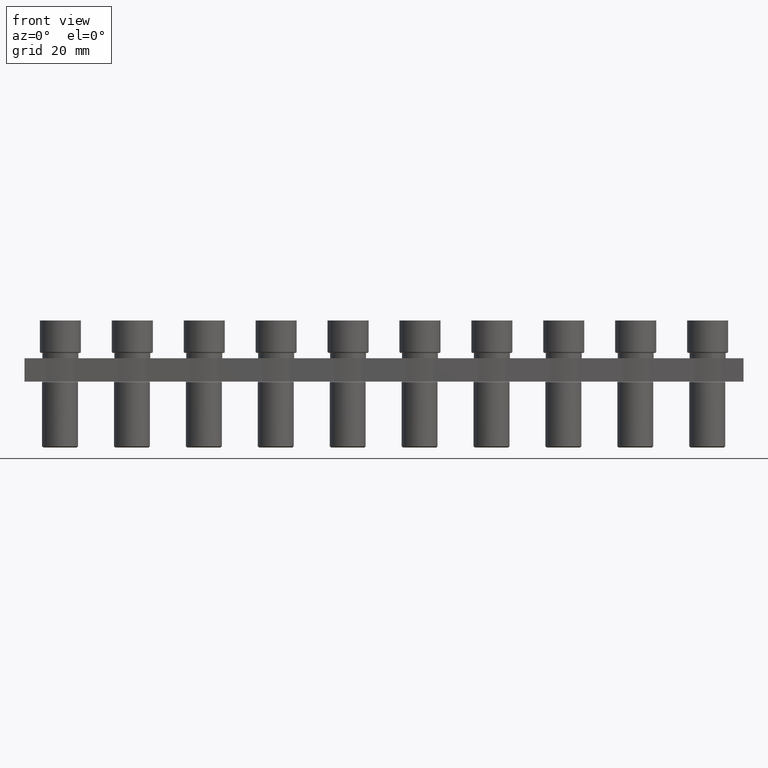
[diagram: clean part render]
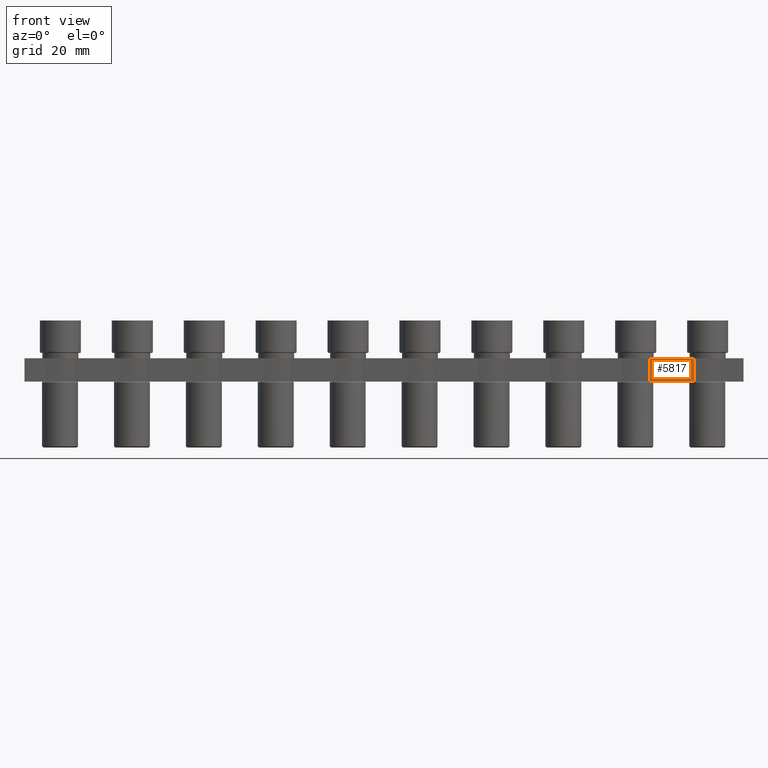
[diagram: same view with one face highlighted and labeled with its STEP entity id]
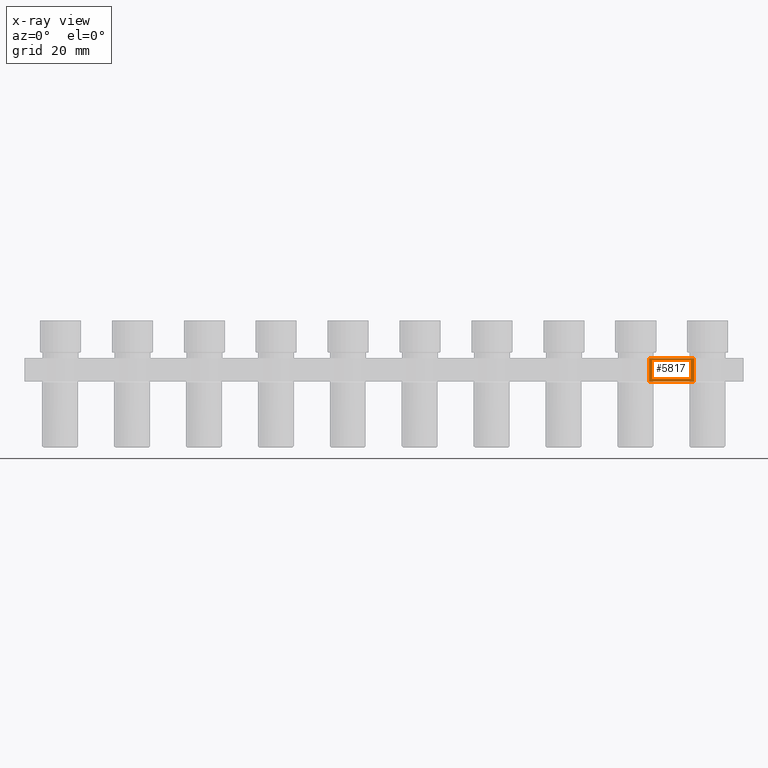
[diagram: x-ray of the same camera — body ghosted, the highlighted face saturated]
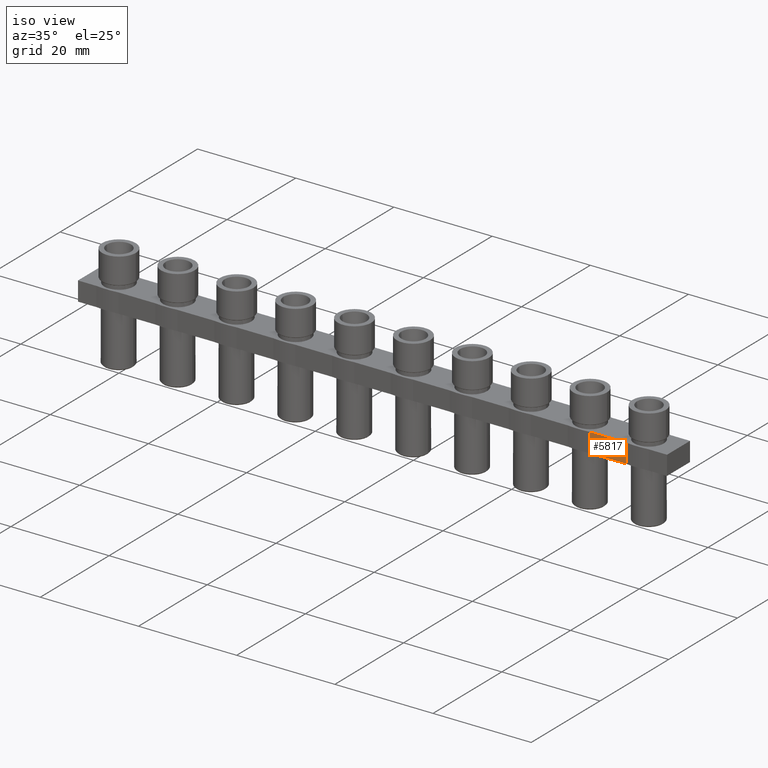
[diagram: same view with one face highlighted and labeled with its STEP entity id]
A machine part, front view. The second image highlights one B-rep face of the part: STEP entity #5817.
The next image is the same camera in x-ray: the body ghosted, the highlighted face saturated — about 0% of this face is hidden behind the body in this view.
A second angle (iso view) of the same face is appended — the face is thin or edge-on in the first view.
In plain terms, the highlighted planar face has unit normal (-0, 1, 0).
Its self-contained STEP definition (entity closure, byte-faithful):
#1624 = CARTESIAN_POINT ( 'NONE',  ( 98.25000000000154900, -3.349999999999918400, -0.9000000000000014700 ) ) ;
#1667 = CARTESIAN_POINT ( 'NONE',  ( 105.7499999999983800, -3.349999999999904600, -4.800000000000001600 ) ) ;
#1681 = CARTESIAN_POINT ( 'NONE',  ( 105.7499999999983800, -3.349999999999904200, -0.9000000000000014700 ) ) ;
#1710 = CARTESIAN_POINT ( 'NONE',  ( 98.25000000000156300, -3.349999999999917000, -4.800000000000001600 ) ) ;
#3074 = AXIS2_PLACEMENT_3D ( 'NONE', #7852, #7853, #7856 ) ;
#3788 = VERTEX_POINT ( 'NONE', #1624 ) ;
#3804 = VERTEX_POINT ( 'NONE', #1681 ) ;
#3832 = VERTEX_POINT ( 'NONE', #1710 ) ;
#3843 = VERTEX_POINT ( 'NONE', #1667 ) ;
#4823 = EDGE_LOOP ( 'NONE', ( #7764, #7793, #7750, #7755 ) ) ;
#5817 = ADVANCED_FACE ( 'NONE', ( #7851 ), #7843, .F. ) ;
#7144 = EDGE_CURVE ( 'NONE', #3804, #3843, #9889, .T. ) ;
#7191 = EDGE_CURVE ( 'NONE', #3832, #3788, #10242, .T. ) ;
#7750 = ORIENTED_EDGE ( 'NONE', *, *, #8988, .F. ) ;
#7755 = ORIENTED_EDGE ( 'NONE', *, *, #7191, .F. ) ;
#7764 = ORIENTED_EDGE ( 'NONE', *, *, #9079, .F. ) ;
#7793 = ORIENTED_EDGE ( 'NONE', *, *, #7144, .F. ) ;
#7843 = PLANE ( 'NONE',  #3074 ) ;
#7851 = FACE_OUTER_BOUND ( 'NONE', #4823, .T. ) ;
#7852 = CARTESIAN_POINT ( 'NONE',  ( 112.1500000000000200, -3.349999999999902800, -0.9000000000000014700 ) ) ;
#7853 = DIRECTION ( 'NONE',  ( -1.245679091791856200E-016, 1.000000000000000000, 0.0000000000000000000 ) ) ;
#7856 = DIRECTION ( 'NONE',  ( -1.000000000000000000, -1.245679091791856200E-016, 0.0000000000000000000 ) ) ;
#8818 = VECTOR ( 'NONE', #12259, 1000.000000000000000 ) ;
#8988 = EDGE_CURVE ( 'NONE', #3788, #3804, #11958, .T. ) ;
#9079 = EDGE_CURVE ( 'NONE', #3843, #3832, #12252, .T. ) ;
#9889 = LINE ( 'NONE', #9984, #16376 ) ;
#9984 = CARTESIAN_POINT ( 'NONE',  ( 105.7499999999983800, -3.349999999999903300, -0.9000000000000014700 ) ) ;
#9985 = DIRECTION ( 'NONE',  ( -0.0000000000000000000, -0.0000000000000000000, -1.000000000000000000 ) ) ;
#10204 = DIRECTION ( 'NONE',  ( 0.0000000000000000000, 0.0000000000000000000, 1.000000000000000000 ) ) ;
#10236 = CARTESIAN_POINT ( 'NONE',  ( 98.25000000000145000, -3.349999999999930800, -9.302499305941093900 ) ) ;
#10242 = LINE ( 'NONE', #10236, #16388 ) ;
#11936 = CARTESIAN_POINT ( 'NONE',  ( 112.1500000000000200, -3.349999999999902800, -0.9000000000000014700 ) ) ;
#11958 = LINE ( 'NONE', #11936, #16835 ) ;
#11959 = DIRECTION ( 'NONE',  ( 1.000000000000000000, 1.245679091791856200E-016, -0.0000000000000000000 ) ) ;
#12252 = LINE ( 'NONE', #12260, #8818 ) ;
#12259 = DIRECTION ( 'NONE',  ( -1.000000000000000000, 0.0000000000000000000, -0.0000000000000000000 ) ) ;
#12260 = CARTESIAN_POINT ( 'NONE',  ( 18.14999999999995900, -3.349999999999902800, -4.800000000000001600 ) ) ;
#16376 = VECTOR ( 'NONE', #9985, 1000.000000000000000 ) ;
#16388 = VECTOR ( 'NONE', #10204, 1000.000000000000000 ) ;
#16835 = VECTOR ( 'NONE', #11959, 1000.000000000000000 ) ;